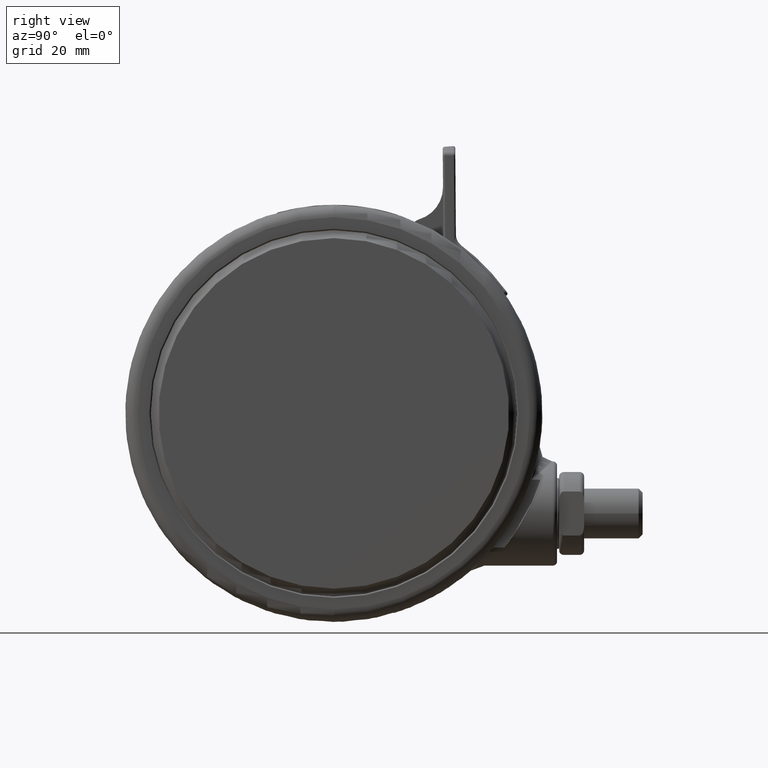
[diagram: clean part render]
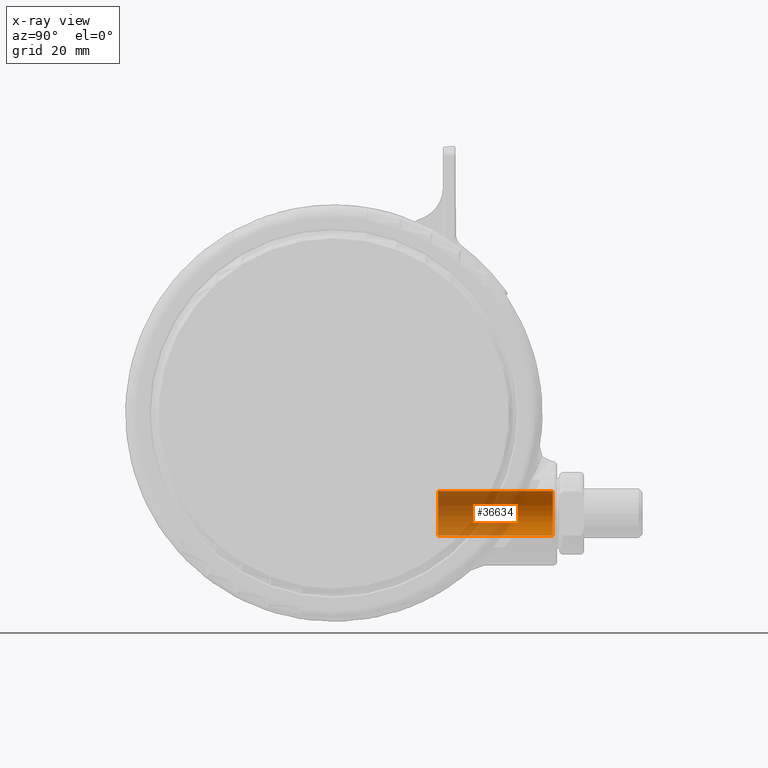
[diagram: x-ray — body ghosted, one internal face saturated and labeled with its STEP entity id]
A machine part, right view, then the same camera in x-ray: the body is ghosted and one INTERNAL B-rep face — a face not visible from any outside direction — is saturated and labeled: STEP entity #36634.
In plain terms, the highlighted cylindrical surface (edge-blend (fillet) strip) has radius 5.35 mm, axis along (0, 1, 0).
Its self-contained STEP definition (entity closure, byte-faithful):
#1763 = ORIENTED_EDGE ( 'NONE', *, *, #42170, .F. ) ;
#1882 = DIRECTION ( 'NONE',  ( 2.360897160001558300E-016, -1.000000000000000000, 6.688773330916236600E-017 ) ) ;
#2837 = DIRECTION ( 'NONE',  ( 1.000000000000000000, 0.0000000000000000000, 0.0000000000000000000 ) ) ;
#3629 = EDGE_LOOP ( 'NONE', ( #15008, #30509, #36781, #1763 ) ) ;
#4086 = FACE_OUTER_BOUND ( 'NONE', #3629, .T. ) ;
#4295 = DIRECTION ( 'NONE',  ( 2.360897160001558300E-016, -1.000000000000000000, 6.688773330916236600E-017 ) ) ;
#5399 = LINE ( 'NONE', #19467, #24267 ) ;
#7534 = VERTEX_POINT ( 'NONE', #37283 ) ;
#7992 = VERTEX_POINT ( 'NONE', #21386 ) ;
#8101 = DIRECTION ( 'NONE',  ( 1.000000000000000000, 0.0000000000000000000, 0.0000000000000000000 ) ) ;
#8205 = VECTOR ( 'NONE', #1882, 1000.000000000000000 ) ;
#8243 = DIRECTION ( 'NONE',  ( 2.360897160001558300E-016, -1.000000000000000000, 6.688773330916236600E-017 ) ) ;
#13282 = AXIS2_PLACEMENT_3D ( 'NONE', #36138, #13540, #39941 ) ;
#13540 = DIRECTION ( 'NONE',  ( 2.360897160001558300E-016, -1.000000000000000000, 6.688773330916236600E-017 ) ) ;
#15008 = ORIENTED_EDGE ( 'NONE', *, *, #15930, .F. ) ;
#15930 = EDGE_CURVE ( 'NONE', #7992, #48765, #34740, .T. ) ;
#16492 = VERTEX_POINT ( 'NONE', #20594 ) ;
#17360 = AXIS2_PLACEMENT_3D ( 'NONE', #34447, #4295, #8101 ) ;
#19467 = CARTESIAN_POINT ( 'NONE',  ( -29.34999999999999400, -61.36639215513579900, -24.29999999999995100 ) ) ;
#20594 = CARTESIAN_POINT ( 'NONE',  ( -29.34999999999999400, -52.50000000000000700, -24.29999999999995500 ) ) ;
#21386 = CARTESIAN_POINT ( 'NONE',  ( -29.34999999999999100, -25.00000000000000700, -24.29999999999995100 ) ) ;
#22969 = CYLINDRICAL_SURFACE ( 'NONE', #17360, 5.350000000000000500 ) ;
#24267 = VECTOR ( 'NONE', #8243, 1000.000000000000000 ) ;
#25440 = DIRECTION ( 'NONE',  ( 2.360897160001558300E-016, -1.000000000000000000, 6.688773330916236600E-017 ) ) ;
#29442 = LINE ( 'NONE', #47048, #8205 ) ;
#30509 = ORIENTED_EDGE ( 'NONE', *, *, #35147, .T. ) ;
#32573 = AXIS2_PLACEMENT_3D ( 'NONE', #48022, #25440, #2837 ) ;
#32833 = CIRCLE ( 'NONE', #32573, 5.350000000000000500 ) ;
#34447 = CARTESIAN_POINT ( 'NONE',  ( -23.99999999999999300, -61.36639215513579900, -24.29999999999995100 ) ) ;
#34740 = CIRCLE ( 'NONE', #13282, 5.350000000000000500 ) ;
#35147 = EDGE_CURVE ( 'NONE', #7992, #16492, #5399, .T. ) ;
#36138 = CARTESIAN_POINT ( 'NONE',  ( -23.99999999999999600, -25.00000000000000700, -24.29999999999995100 ) ) ;
#36634 = ADVANCED_FACE ( 'NONE', ( #4086 ), #22969, .F. ) ;
#36781 = ORIENTED_EDGE ( 'NONE', *, *, #38115, .T. ) ;
#37283 = CARTESIAN_POINT ( 'NONE',  ( -18.64999999999999100, -52.50000000000000700, -24.29999999999995100 ) ) ;
#38115 = EDGE_CURVE ( 'NONE', #16492, #7534, #32833, .T. ) ;
#39941 = DIRECTION ( 'NONE',  ( 1.000000000000000000, 0.0000000000000000000, 0.0000000000000000000 ) ) ;
#42170 = EDGE_CURVE ( 'NONE', #48765, #7534, #29442, .T. ) ;
#47048 = CARTESIAN_POINT ( 'NONE',  ( -18.64999999999999100, -61.36639215513579900, -24.29999999999995100 ) ) ;
#48022 = CARTESIAN_POINT ( 'NONE',  ( -23.99999999999999300, -52.50000000000000700, -24.29999999999995100 ) ) ;
#48055 = CARTESIAN_POINT ( 'NONE',  ( -18.65000000000000200, -25.00000000000000700, -24.29999999999995100 ) ) ;
#48765 = VERTEX_POINT ( 'NONE', #48055 ) ;